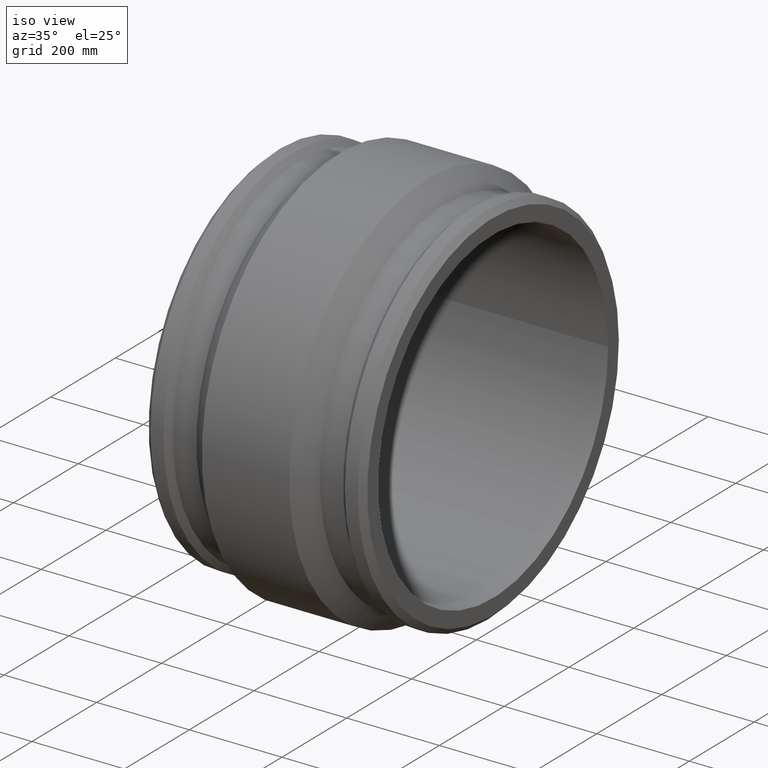
[diagram: clean part render]
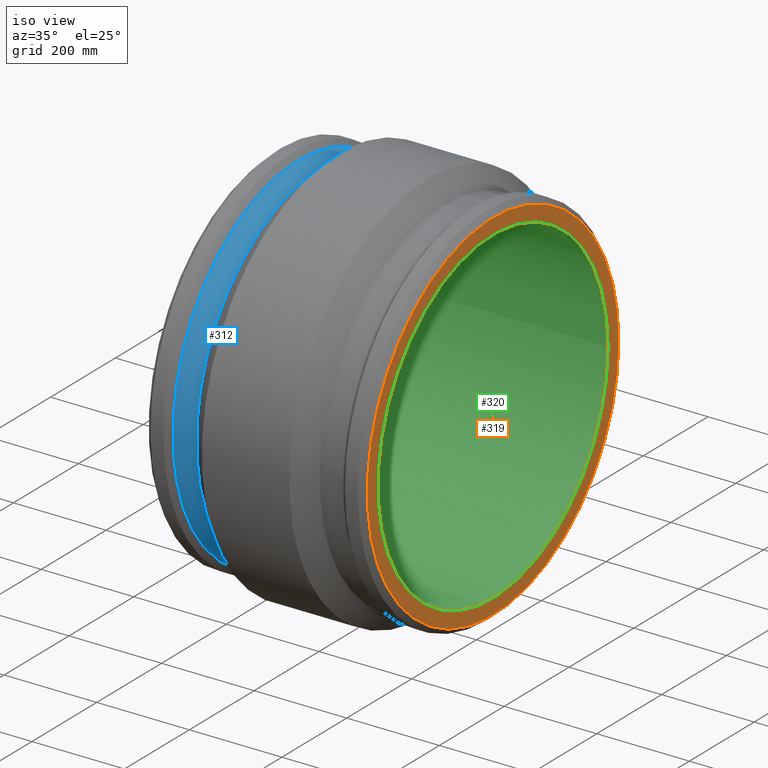
[diagram: same view with three faces highlighted in distinct colors, each labeled with its STEP entity id]
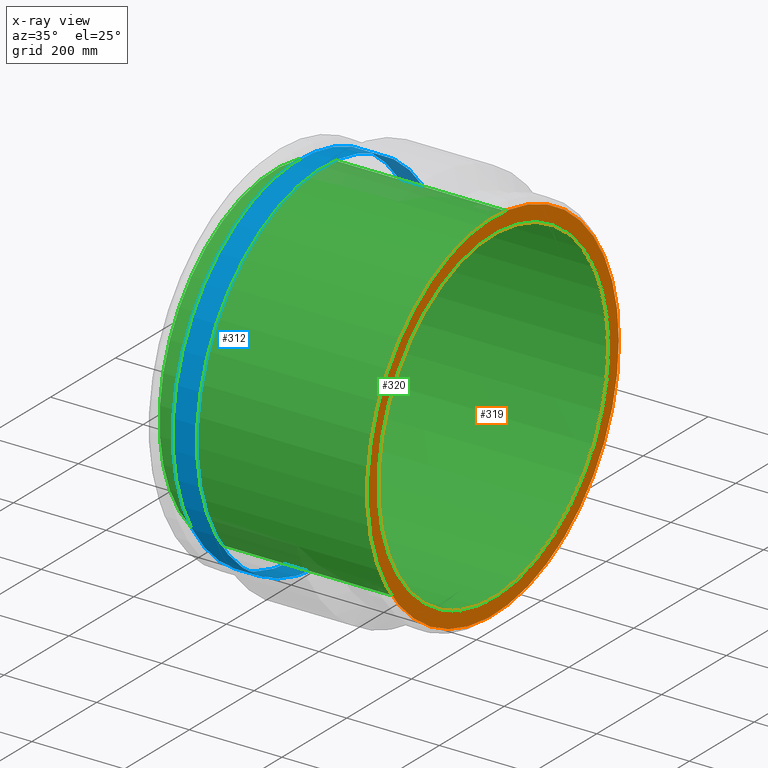
[diagram: x-ray of the same camera — body ghosted, the three highlighted faces saturated]
A machine part, iso view with three faces highlighted in distinct colors.
The next image is the same camera in x-ray (body ghosted, the three faces saturated) — at least one of them is partly hidden behind the body in this view.
Their STEP definitions:

[orange] entity #319 — the highlighted planar face has unit normal (1, 0, 0).
#47=FACE_BOUND('',#140,.T.);
#89=FACE_OUTER_BOUND('',#139,.T.);
#139=EDGE_LOOP('',(#281));
#140=EDGE_LOOP('',(#282));
#167=CIRCLE('',#373,388.);
#168=CIRCLE('',#375,355.);
#193=VERTEX_POINT('',#636);
#194=VERTEX_POINT('',#639);
#223=EDGE_CURVE('',#193,#193,#167,.T.);
#224=EDGE_CURVE('',#194,#194,#168,.T.);
#281=ORIENTED_EDGE('',*,*,#223,.T.);
#282=ORIENTED_EDGE('',*,*,#224,.F.);
#292=PLANE('',#374);
#319=ADVANCED_FACE('',(#89,#47),#292,.T.);
#373=AXIS2_PLACEMENT_3D('',#637,#479,#480);
#374=AXIS2_PLACEMENT_3D('',#638,#481,#482);
#375=AXIS2_PLACEMENT_3D('',#640,#483,#484);
#479=DIRECTION('center_axis',(1.,1.83697019872103E-16,0.));
#480=DIRECTION('ref_axis',(0.,0.,-1.));
#481=DIRECTION('center_axis',(1.,1.83697019872103E-16,0.));
#482=DIRECTION('ref_axis',(0.,0.,-1.));
#483=DIRECTION('center_axis',(1.,1.83697019872103E-16,0.));
#484=DIRECTION('ref_axis',(0.,0.,-1.));
#636=CARTESIAN_POINT('',(236.,388.,0.));
#637=CARTESIAN_POINT('Origin',(236.,8.67049933796326E-14,0.));
#638=CARTESIAN_POINT('Origin',(236.,355.,0.));
#639=CARTESIAN_POINT('',(236.,355.,0.));
#640=CARTESIAN_POINT('Origin',(236.,8.67049933796326E-14,0.));

[blue] entity #312 — the highlighted cylindrical surface (bore or boss wall) has radius 388 mm, axis along (1, 0, 0).
#40=FACE_BOUND('',#126,.T.);
#59=CYLINDRICAL_SURFACE('',#361,388.);
#82=FACE_OUTER_BOUND('',#125,.T.);
#125=EDGE_LOOP('',(#267));
#126=EDGE_LOOP('',(#268));
#161=CIRCLE('',#360,388.);
#162=CIRCLE('',#362,388.);
#187=VERTEX_POINT('',#617);
#188=VERTEX_POINT('',#620);
#217=EDGE_CURVE('',#187,#187,#161,.T.);
#218=EDGE_CURVE('',#188,#188,#162,.T.);
#267=ORIENTED_EDGE('',*,*,#217,.T.);
#268=ORIENTED_EDGE('',*,*,#218,.F.);
#312=ADVANCED_FACE('',(#82,#40),#59,.T.);
#360=AXIS2_PLACEMENT_3D('',#618,#453,#454);
#361=AXIS2_PLACEMENT_3D('',#619,#455,#456);
#362=AXIS2_PLACEMENT_3D('',#621,#457,#458);
#453=DIRECTION('center_axis',(1.,1.83697019872103E-16,0.));
#454=DIRECTION('ref_axis',(0.,0.,-1.));
#455=DIRECTION('center_axis',(1.,1.83697019872103E-16,0.));
#456=DIRECTION('ref_axis',(-2.00152883312704E-16,1.,0.));
#457=DIRECTION('center_axis',(1.,1.83697019872103E-16,0.));
#458=DIRECTION('ref_axis',(0.,0.,-1.));
#617=CARTESIAN_POINT('',(-184.08,388.,0.));
#618=CARTESIAN_POINT('Origin',(-184.08,9.5375492717596E-15,0.));
#619=CARTESIAN_POINT('Origin',(-158.49,1.42383560102867E-14,0.));
#620=CARTESIAN_POINT('',(-132.9,388.,0.));
#621=CARTESIAN_POINT('Origin',(-132.9,1.89391627488138E-14,0.));

[green] entity #320 — the highlighted cylindrical surface (bore or boss wall) has radius 355 mm, axis along (1, 0, 0).
#48=FACE_BOUND('',#142,.T.);
#62=CYLINDRICAL_SURFACE('',#376,355.);
#90=FACE_OUTER_BOUND('',#141,.T.);
#141=EDGE_LOOP('',(#283));
#142=EDGE_LOOP('',(#284));
#160=CIRCLE('',#357,355.);
#168=CIRCLE('',#375,355.);
#186=VERTEX_POINT('',#613);
#194=VERTEX_POINT('',#639);
#216=EDGE_CURVE('',#186,#186,#160,.T.);
#224=EDGE_CURVE('',#194,#194,#168,.T.);
#283=ORIENTED_EDGE('',*,*,#224,.T.);
#284=ORIENTED_EDGE('',*,*,#216,.F.);
#320=ADVANCED_FACE('',(#90,#48),#62,.F.);
#357=AXIS2_PLACEMENT_3D('',#614,#447,#448);
#375=AXIS2_PLACEMENT_3D('',#640,#483,#484);
#376=AXIS2_PLACEMENT_3D('',#641,#485,#486);
#447=DIRECTION('center_axis',(1.,1.83697019872103E-16,0.));
#448=DIRECTION('ref_axis',(0.,0.,-1.));
#483=DIRECTION('center_axis',(1.,1.83697019872103E-16,0.));
#484=DIRECTION('ref_axis',(0.,0.,-1.));
#485=DIRECTION('center_axis',(1.,1.83697019872103E-16,0.));
#486=DIRECTION('ref_axis',(-2.00152883312704E-16,1.,0.));
#613=CARTESIAN_POINT('',(-236.,355.,0.));
#614=CARTESIAN_POINT('Origin',(-236.,1.18329135783152E-29,0.));
#639=CARTESIAN_POINT('',(236.,355.,0.));
#640=CARTESIAN_POINT('Origin',(236.,8.67049933796326E-14,0.));
#641=CARTESIAN_POINT('Origin',(-118.,2.16762483449082E-14,0.));